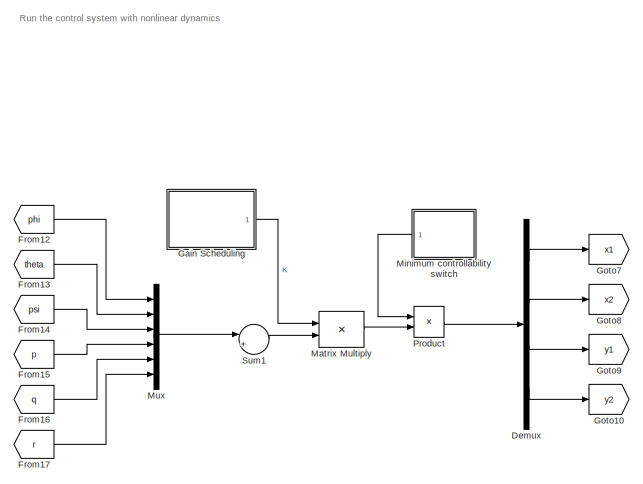
[diagram: root canvas - part 1/3, top center region]
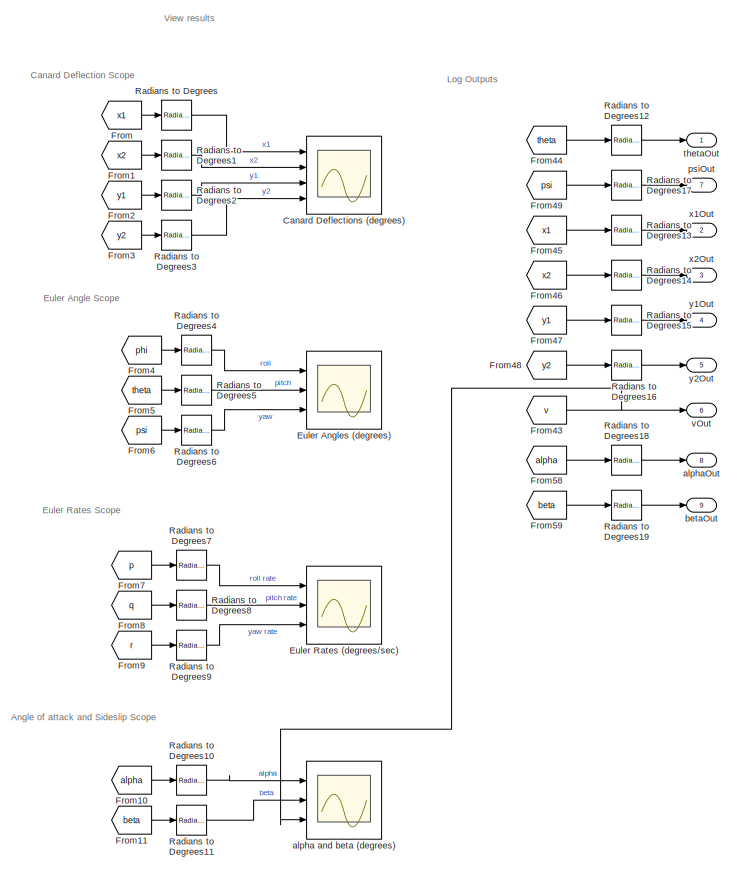
[diagram: root canvas - part 2/3, right side, full height]
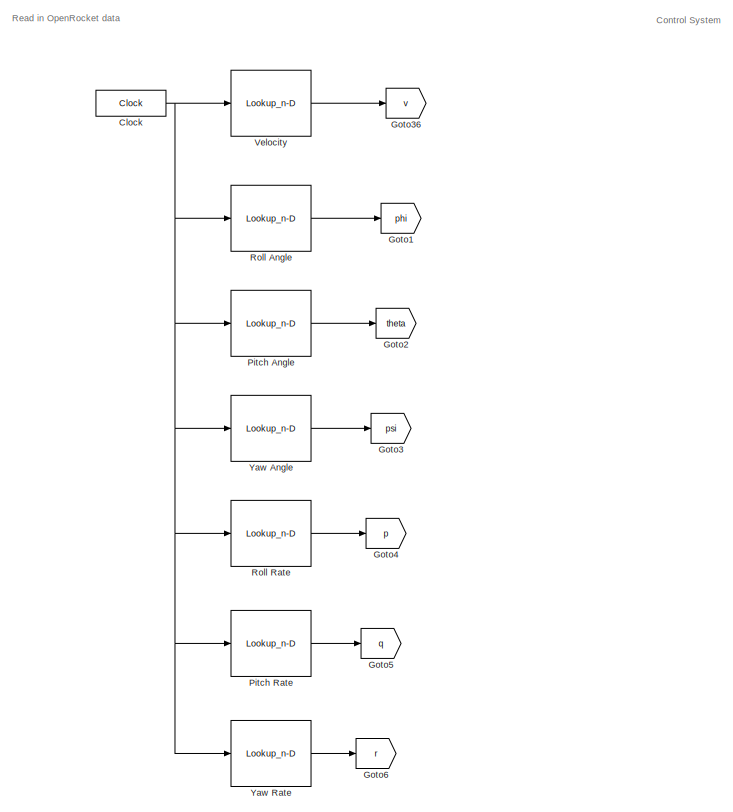
[diagram: root canvas - part 3/3, left side, full height]
MODEL slx_04a61a81cd6c
KIND model
CONFIG AbsTol = auto
CONFIG EnableMultiTasking = off
CONFIG FixedStep = 0.01
CONFIG MaxStep = auto
CONFIG MinStep = auto
CONFIG RelTol = 1e-3
CONFIG SampleTimeConstraint = Unconstrained
CONFIG SolverName = FixedStepAuto
CONFIG StartTime = 0.0
CONFIG StopTime = 14.9
BLOCK [Scope] Canard Deflections (degrees)
  Floating = off
  NumInputPorts = 4
  Ports = [4]
  ScopeSpecificationString = Simulink.scopes.TimeScopeBlockCfg('CurrentConfiguration', extmgr.ConfigurationSet(extmgr.Configuration('Core','General UI',true),extmgr.Configuration('Core','Source UI',true),extmgr.Configuration('Sources','WiredSimulink',true),extmgr.Configuration('Visuals','Time Domain',true,'SerializedDisplays',{struct('MinYLimReal','-97.45513','MaxYLimReal','40.74375','YLabelReal','','MinYLimMag','0.00000','Ma...<+1954ch>
BLOCK [Clock] Clock
  DisplayTime = on
BLOCK [Demux] Demux
  Ports = [1, 4]
BLOCK [Scope] Euler Angles (degrees)
  Floating = off
  NumInputPorts = 3
  Ports = [3]
  ScopeSpecificationString = Simulink.scopes.TimeScopeBlockCfg('CurrentConfiguration', extmgr.ConfigurationSet(extmgr.Configuration('Core','General UI',true),extmgr.Configuration('Core','Source UI',true),extmgr.Configuration('Sources','WiredSimulink',true,'DataLoggingVariableName','ScopeData1'),extmgr.Configuration('Visuals','Time Domain',true,'SerializedDisplays',{struct('MinYLimReal','-197.89968','MaxYLimReal','1322.02503',...<+1894ch>
BLOCK [Scope] Euler Rates (degrees//sec)
  Floating = off
  NumInputPorts = 3
  Ports = [3]
  ScopeSpecificationString = Simulink.scopes.TimeScopeBlockCfg('CurrentConfiguration', extmgr.ConfigurationSet(extmgr.Configuration('Core','General UI',true),extmgr.Configuration('Core','Source UI',true),extmgr.Configuration('Sources','WiredSimulink',true,'DataLoggingVariableName','ScopeData2'),extmgr.Configuration('Visuals','Time Domain',true,'SerializedDisplays',{struct('MinYLimReal','-460.07102','MaxYLimReal','146.47305','...<+1903ch>
BLOCK [From] From
  GotoTag = x1
  TagVisibility = global
BLOCK [From] From1
  GotoTag = x2
  TagVisibility = global
BLOCK [From] From10
  GotoTag = alpha
BLOCK [From] From11
  GotoTag = beta
BLOCK [From] From12
  GotoTag = phi
  TagVisibility = global
BLOCK [From] From13
  GotoTag = theta
  TagVisibility = global
BLOCK [From] From14
  GotoTag = psi
  TagVisibility = global
BLOCK [From] From15
  GotoTag = p
  TagVisibility = global
BLOCK [From] From16
  GotoTag = q
  TagVisibility = global
BLOCK [From] From17
  GotoTag = r
  TagVisibility = global
BLOCK [From] From2
  GotoTag = y1
  TagVisibility = global
BLOCK [From] From3
  GotoTag = y2
  TagVisibility = global
BLOCK [From] From4
  GotoTag = phi
  TagVisibility = global
BLOCK [From] From43
  GotoTag = v
  TagVisibility = global
BLOCK [From] From44
  GotoTag = theta
  TagVisibility = global
BLOCK [From] From45
  GotoTag = x1
  TagVisibility = global
BLOCK [From] From46
  GotoTag = x2
  TagVisibility = global
BLOCK [From] From47
  GotoTag = y1
  TagVisibility = global
BLOCK [From] From48
  GotoTag = y2
  TagVisibility = global
BLOCK [From] From49
  GotoTag = psi
  TagVisibility = global
BLOCK [From] From5
  GotoTag = theta
  TagVisibility = global
BLOCK [From] From58
  GotoTag = alpha
BLOCK [From] From59
  GotoTag = beta
BLOCK [From] From6
  GotoTag = psi
  TagVisibility = global
BLOCK [From] From7
  GotoTag = p
  TagVisibility = global
BLOCK [From] From8
  GotoTag = q
  TagVisibility = global
BLOCK [From] From9
  GotoTag = r
  TagVisibility = global
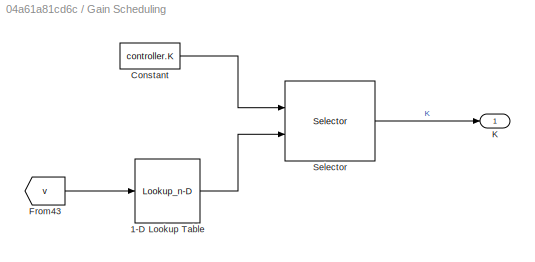
BLOCK [SubSystem] Gain Scheduling
  Ports = [0, 1]
  RequestExecContextInheritance = off
BLOCK [Lookup_n-D] Gain Scheduling/1-D Lookup Table
  BreakpointsForDimension1 = controller.velocities
  InputPortMap = u0
  InternalRulePriority = Speed
  InterpMethod = Nearest
  NumberOfTableDimensions = 1
  OutDataTypeStr = int8
  Ports = [1, 1]
  RndMeth = Simplest
  Table = 1:length(controller.velocities)
BLOCK [Constant] Gain Scheduling/Constant
  Value = controller.K
BLOCK [From] Gain Scheduling/From43
  GotoTag = v
  TagVisibility = global
BLOCK [Outport] Gain Scheduling/K
BLOCK [Selector] Gain Scheduling/Selector
  IndexOptions = Select all,Select all,Index vector (port)
  Indices = [1 3],1,1
  InputPortWidth = 3
  NumberOfDimensions = 3
  OutputSizes = 1,1,1
  Ports = [2, 1]
BLOCK [Goto] Goto1
  GotoTag = phi
  TagVisibility = global
BLOCK [Goto] Goto10
  GotoTag = y2
  TagVisibility = global
BLOCK [Goto] Goto2
  GotoTag = theta
  TagVisibility = global
BLOCK [Goto] Goto3
  GotoTag = psi
  TagVisibility = global
BLOCK [Goto] Goto36
  GotoTag = v
  TagVisibility = global
BLOCK [Goto] Goto4
  GotoTag = p
  TagVisibility = global
BLOCK [Goto] Goto5
  GotoTag = q
  TagVisibility = global
BLOCK [Goto] Goto6
  GotoTag = r
  TagVisibility = global
BLOCK [Goto] Goto7
  GotoTag = x1
  TagVisibility = global
BLOCK [Goto] Goto8
  GotoTag = x2
  TagVisibility = global
BLOCK [Goto] Goto9
  GotoTag = y1
  TagVisibility = global
BLOCK [Product] Matrix Multiply
  Multiplication = Matrix(*)
  Ports = [2, 1]
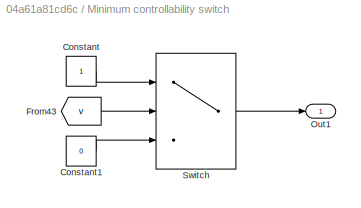
BLOCK [SubSystem] Minimum controllability switch
  NameLocation = top
  Ports = [0, 1]
  RequestExecContextInheritance = off
BLOCK [Constant] Minimum controllability switch/Constant
BLOCK [Constant] Minimum controllability switch/Constant1
  Value = 0
BLOCK [From] Minimum controllability switch/From43
  GotoTag = v
  TagVisibility = global
BLOCK [Outport] Minimum controllability switch/Out1
BLOCK [Switch] Minimum controllability switch/Switch
  InputSameDT = off
  SaturateOnIntegerOverflow = off
  Threshold = controller.minControlSpeed
BLOCK [Mux] Mux
  DisplayOption = bar
  Inputs = 6
  Ports = [6, 1]
BLOCK [Lookup_n-D] Pitch Angle
  BreakpointsForDimension1 = time
  InputPortMap = u0
  InternalRulePriority = Speed
  NumberOfTableDimensions = 1
  Ports = [1, 1]
  RndMeth = Simplest
  Table = pitchAngle
BLOCK [Lookup_n-D] Pitch Rate
  BreakpointsForDimension1 = time
  InputPortMap = u0
  InternalRulePriority = Speed
  NumberOfTableDimensions = 1
  Ports = [1, 1]
  RndMeth = Simplest
  Table = pitchRate
BLOCK [Product] Product
  Ports = [2, 1]
BLOCK [Reference] Radians to Degrees  REF=simulink_extras/Transformations/Radians
to Degrees
  Ports = [1, 1]
  SourceBlock = simulink_extras/Transformations/Radians\nto Degrees
  SourceProductBaseCode = SL
  SourceType = RadiansToDegrees
BLOCK [Reference] Radians to Degrees1  REF=simulink_extras/Transformations/Radians
to Degrees
  Ports = [1, 1]
  SourceBlock = simulink_extras/Transformations/Radians\nto Degrees
  SourceProductBaseCode = SL
  SourceType = RadiansToDegrees
BLOCK [Reference] Radians to Degrees10  REF=simulink_extras/Transformations/Radians
to Degrees
  Ports = [1, 1]
  SourceBlock = simulink_extras/Transformations/Radians\nto Degrees
  SourceProductBaseCode = SL
  SourceType = RadiansToDegrees
BLOCK [Reference] Radians to Degrees11  REF=simulink_extras/Transformations/Radians
to Degrees
  Ports = [1, 1]
  SourceBlock = simulink_extras/Transformations/Radians\nto Degrees
  SourceProductBaseCode = SL
  SourceType = RadiansToDegrees
BLOCK [Reference] Radians to Degrees12  REF=simulink_extras/Transformations/Radians
to Degrees
  Ports = [1, 1]
  SourceBlock = simulink_extras/Transformations/Radians\nto Degrees
  SourceProductBaseCode = SL
  SourceType = RadiansToDegrees
BLOCK [Reference] Radians to Degrees13  REF=simulink_extras/Transformations/Radians
to Degrees
  Ports = [1, 1]
  SourceBlock = simulink_extras/Transformations/Radians\nto Degrees
  SourceProductBaseCode = SL
  SourceType = RadiansToDegrees
BLOCK [Reference] Radians to Degrees14  REF=simulink_extras/Transformations/Radians
to Degrees
  Ports = [1, 1]
  SourceBlock = simulink_extras/Transformations/Radians\nto Degrees
  SourceProductBaseCode = SL
  SourceType = RadiansToDegrees
BLOCK [Reference] Radians to Degrees15  REF=simulink_extras/Transformations/Radians
to Degrees
  Ports = [1, 1]
  SourceBlock = simulink_extras/Transformations/Radians\nto Degrees
  SourceProductBaseCode = SL
  SourceType = RadiansToDegrees
BLOCK [Reference] Radians to Degrees16  REF=simulink_extras/Transformations/Radians
to Degrees
  Ports = [1, 1]
  SourceBlock = simulink_extras/Transformations/Radians\nto Degrees
  SourceProductBaseCode = SL
  SourceType = RadiansToDegrees
BLOCK [Reference] Radians to Degrees17  REF=simulink_extras/Transformations/Radians
to Degrees
  Ports = [1, 1]
  SourceBlock = simulink_extras/Transformations/Radians\nto Degrees
  SourceProductBaseCode = SL
  SourceType = RadiansToDegrees
BLOCK [Reference] Radians to Degrees18  REF=simulink_extras/Transformations/Radians
to Degrees
  Ports = [1, 1]
  SourceBlock = simulink_extras/Transformations/Radians\nto Degrees
  SourceProductBaseCode = SL
  SourceType = RadiansToDegrees
BLOCK [Reference] Radians to Degrees19  REF=simulink_extras/Transformations/Radians
to Degrees
  Ports = [1, 1]
  SourceBlock = simulink_extras/Transformations/Radians\nto Degrees
  SourceProductBaseCode = SL
  SourceType = RadiansToDegrees
BLOCK [Reference] Radians to Degrees2  REF=simulink_extras/Transformations/Radians
to Degrees
  Ports = [1, 1]
  SourceBlock = simulink_extras/Transformations/Radians\nto Degrees
  SourceProductBaseCode = SL
  SourceType = RadiansToDegrees
BLOCK [Reference] Radians to Degrees3  REF=simulink_extras/Transformations/Radians
to Degrees
  Ports = [1, 1]
  SourceBlock = simulink_extras/Transformations/Radians\nto Degrees
  SourceProductBaseCode = SL
  SourceType = RadiansToDegrees
BLOCK [Reference] Radians to Degrees4  REF=simulink_extras/Transformations/Radians
to Degrees
  Ports = [1, 1]
  SourceBlock = simulink_extras/Transformations/Radians\nto Degrees
  SourceProductBaseCode = SL
  SourceType = RadiansToDegrees
BLOCK [Reference] Radians to Degrees5  REF=simulink_extras/Transformations/Radians
to Degrees
  Ports = [1, 1]
  SourceBlock = simulink_extras/Transformations/Radians\nto Degrees
  SourceProductBaseCode = SL
  SourceType = RadiansToDegrees
BLOCK [Reference] Radians to Degrees6  REF=simulink_extras/Transformations/Radians
to Degrees
  Ports = [1, 1]
  SourceBlock = simulink_extras/Transformations/Radians\nto Degrees
  SourceProductBaseCode = SL
  SourceType = RadiansToDegrees
BLOCK [Reference] Radians to Degrees7  REF=simulink_extras/Transformations/Radians
to Degrees
  Ports = [1, 1]
  SourceBlock = simulink_extras/Transformations/Radians\nto Degrees
  SourceProductBaseCode = SL
  SourceType = RadiansToDegrees
BLOCK [Reference] Radians to Degrees8  REF=simulink_extras/Transformations/Radians
to Degrees
  Ports = [1, 1]
  SourceBlock = simulink_extras/Transformations/Radians\nto Degrees
  SourceProductBaseCode = SL
  SourceType = RadiansToDegrees
BLOCK [Reference] Radians to Degrees9  REF=simulink_extras/Transformations/Radians
to Degrees
  Ports = [1, 1]
  SourceBlock = simulink_extras/Transformations/Radians\nto Degrees
  SourceProductBaseCode = SL
  SourceType = RadiansToDegrees
BLOCK [Lookup_n-D] Roll Angle
  BreakpointsForDimension1 = time
  InputPortMap = u0
  InternalRulePriority = Speed
  NumberOfTableDimensions = 1
  Ports = [1, 1]
  RndMeth = Simplest
  Table = rollAngle
BLOCK [Lookup_n-D] Roll Rate
  BreakpointsForDimension1 = time
  InputPortMap = u0
  InternalRulePriority = Speed
  NumberOfTableDimensions = 1
  Ports = [1, 1]
  RndMeth = Simplest
  Table = rollRate
BLOCK [Sum] Sum1
  Inputs = |+-
  Ports = [2, 1]
BLOCK [Lookup_n-D] Velocity
  BreakpointsForDimension1 = time
  InputPortMap = u0
  InternalRulePriority = Speed
  NumberOfTableDimensions = 1
  Ports = [1, 1]
  RndMeth = Simplest
  Table = velocitySmooth
BLOCK [Lookup_n-D] Yaw Angle
  BreakpointsForDimension1 = time
  InputPortMap = u0
  InternalRulePriority = Speed
  NumberOfTableDimensions = 1
  Ports = [1, 1]
  RndMeth = Simplest
  Table = yawAngle
BLOCK [Lookup_n-D] Yaw Rate
  BreakpointsForDimension1 = time
  InputPortMap = u0
  InternalRulePriority = Speed
  NumberOfTableDimensions = 1
  Ports = [1, 1]
  RndMeth = Simplest
  Table = yawRate
BLOCK [Scope] alpha and beta (degrees)
  Floating = off
  NumInputPorts = 3
  Ports = [3]
  ScopeSpecificationString = Simulink.scopes.TimeScopeBlockCfg('CurrentConfiguration', extmgr.ConfigurationSet(extmgr.Configuration('Core','General UI',true),extmgr.Configuration('Core','Source UI',true),extmgr.Configuration('Sources','WiredSimulink',true,'DataLoggingVariableName','ScopeData1'),extmgr.Configuration('Visuals','Time Domain',true,'SerializedDisplays',{struct('MinYLimReal','-0.00704','MaxYLimReal','0.00493','YLab...<+1795ch>
BLOCK [Outport] alphaOut
  Port = 8
  SignalName = alpha
BLOCK [Outport] betaOut
  Port = 9
  SignalName = beta
BLOCK [Outport] psiOut
  Port = 7
  SignalName = yawAngle
BLOCK [Outport] thetaOut
  SignalName = pitchAngle
BLOCK [Outport] vOut
  Port = 6
  SignalName = v
BLOCK [Outport] x1Out
  Port = 2
  SignalName = x1
BLOCK [Outport] x2Out
  Port = 3
  SignalName = x2
BLOCK [Outport] y1Out
  Port = 4
  SignalName = y1
BLOCK [Outport] y2Out
  Port = 5
  SignalName = y2
ANNOTATION (root): Run the control system with nonlinear dynamics
ANNOTATION (root): View results
ANNOTATION (root): Angle of attack and Sideslip Scope
ANNOTATION (root): Canard Deflection Scope
ANNOTATION (root): Control System
ANNOTATION (root): Euler Angle Scope
ANNOTATION (root): Euler Rates Scope
ANNOTATION (root): Log Outputs
ANNOTATION (root): Read in OpenRocket data
NET Clock:1 -> Pitch Angle:1, Pitch Rate:1, Roll Angle:1, Roll Rate:1, Velocity:1, Yaw Angle:1, Yaw Rate:1
LINE Demux:1 -> Goto7:1
LINE Demux:2 -> Goto8:1
LINE Demux:3 -> Goto9:1
LINE Demux:4 -> Goto10:1
LINE From10:1 -> Radians to Degrees10:1
LINE From11:1 -> Radians to Degrees11:1
LINE From12:1 -> Mux:1
LINE From13:1 -> Mux:2
LINE From14:1 -> Mux:3
LINE From15:1 -> Mux:4
LINE From16:1 -> Mux:5
LINE From17:1 -> Mux:6
LINE From1:1 -> Radians to Degrees1:1
LINE From2:1 -> Radians to Degrees2:1
LINE From3:1 -> Radians to Degrees3:1
NET From43:1 -> alpha and beta (degrees):3, vOut:1
LINE From44:1 -> Radians to Degrees12:1
LINE From45:1 -> Radians to Degrees13:1
LINE From46:1 -> Radians to Degrees14:1
LINE From47:1 -> Radians to Degrees15:1
LINE From48:1 -> Radians to Degrees16:1
LINE From49:1 -> Radians to Degrees17:1
LINE From4:1 -> Radians to Degrees4:1
LINE From58:1 -> Radians to Degrees18:1
LINE From59:1 -> Radians to Degrees19:1
LINE From5:1 -> Radians to Degrees5:1
LINE From6:1 -> Radians to Degrees6:1
LINE From7:1 -> Radians to Degrees7:1
LINE From8:1 -> Radians to Degrees8:1
LINE From9:1 -> Radians to Degrees9:1
LINE From:1 -> Radians to Degrees:1
LINE Gain Scheduling/1-D Lookup Table:1 -> Gain Scheduling/Selector:2
LINE Gain Scheduling/Constant:1 -> Gain Scheduling/Selector:1
LINE Gain Scheduling/From43:1 -> Gain Scheduling/1-D Lookup Table:1
LINE Gain Scheduling/Selector:1 -> Gain Scheduling/K:1
LINE Gain Scheduling:1 -> Matrix Multiply:1
LINE Matrix Multiply:1 -> Product:2
LINE Minimum controllability switch/Constant1:1 -> Minimum controllability switch/Switch:3
LINE Minimum controllability switch/Constant:1 -> Minimum controllability switch/Switch:1
LINE Minimum controllability switch/From43:1 -> Minimum controllability switch/Switch:2
LINE Minimum controllability switch/Switch:1 -> Minimum controllability switch/Out1:1
LINE Minimum controllability switch:1 -> Product:1
LINE Mux:1 -> Sum1:1
LINE Pitch Angle:1 -> Goto2:1
LINE Pitch Rate:1 -> Goto5:1
LINE Product:1 -> Demux:1
LINE Radians to Degrees10:1 -> alpha and beta (degrees):1
LINE Radians to Degrees11:1 -> alpha and beta (degrees):2
LINE Radians to Degrees12:1 -> thetaOut:1
LINE Radians to Degrees13:1 -> x1Out:1
LINE Radians to Degrees14:1 -> x2Out:1
LINE Radians to Degrees15:1 -> y1Out:1
LINE Radians to Degrees16:1 -> y2Out:1
LINE Radians to Degrees17:1 -> psiOut:1
LINE Radians to Degrees18:1 -> alphaOut:1
LINE Radians to Degrees19:1 -> betaOut:1
LINE Radians to Degrees1:1 -> Canard Deflections (degrees):2
LINE Radians to Degrees2:1 -> Canard Deflections (degrees):3
LINE Radians to Degrees3:1 -> Canard Deflections (degrees):4
LINE Radians to Degrees4:1 -> Euler Angles (degrees):1
LINE Radians to Degrees5:1 -> Euler Angles (degrees):2
LINE Radians to Degrees6:1 -> Euler Angles (degrees):3
LINE Radians to Degrees7:1 -> Euler Rates (degrees//sec):1
LINE Radians to Degrees8:1 -> Euler Rates (degrees//sec):2
LINE Radians to Degrees9:1 -> Euler Rates (degrees//sec):3
LINE Radians to Degrees:1 -> Canard Deflections (degrees):1
LINE Roll Angle:1 -> Goto1:1
LINE Roll Rate:1 -> Goto4:1
LINE Sum1:1 -> Matrix Multiply:2
LINE Velocity:1 -> Goto36:1
LINE Yaw Angle:1 -> Goto3:1
LINE Yaw Rate:1 -> Goto6:1
note: NET lines group one-source signal fan-out (src -> all destinations, sorted); 1:1 wires keep LINE
